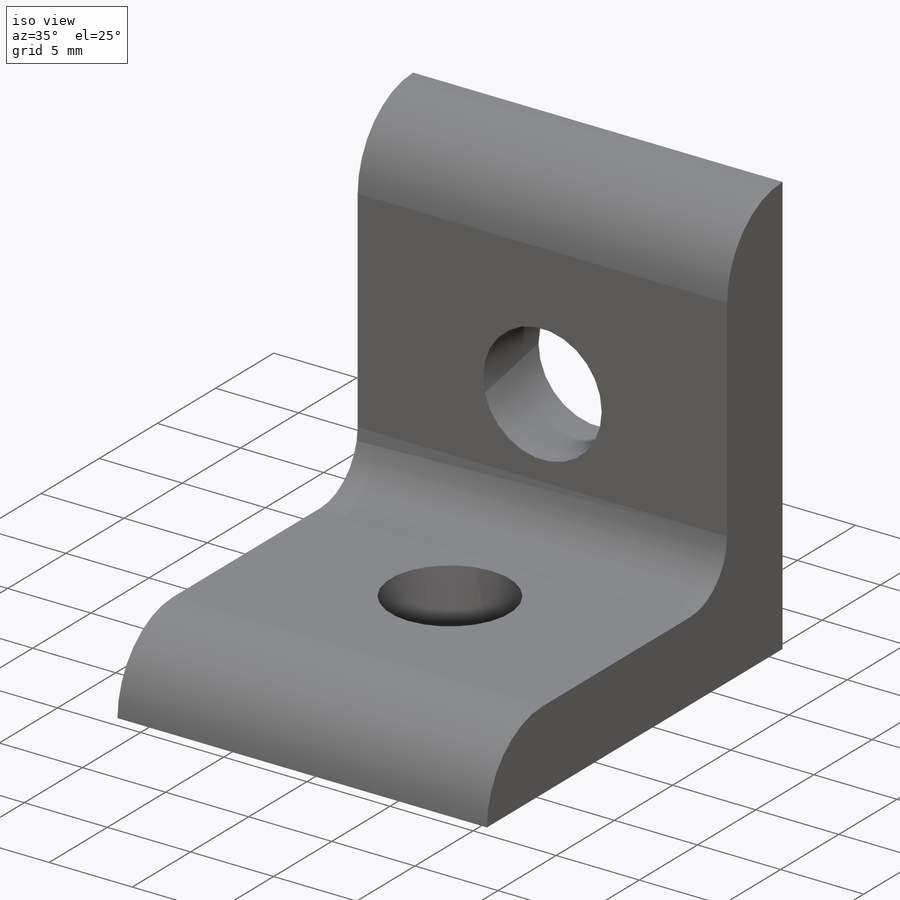
[diagram: iso view]
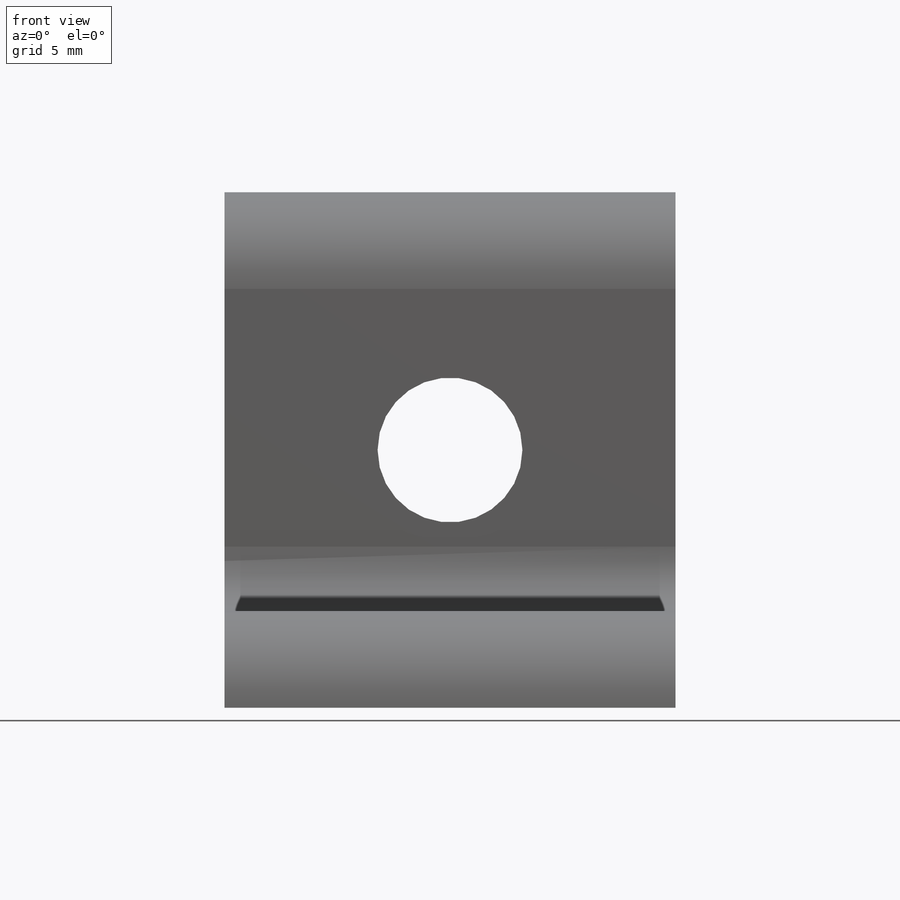
[diagram: front view]
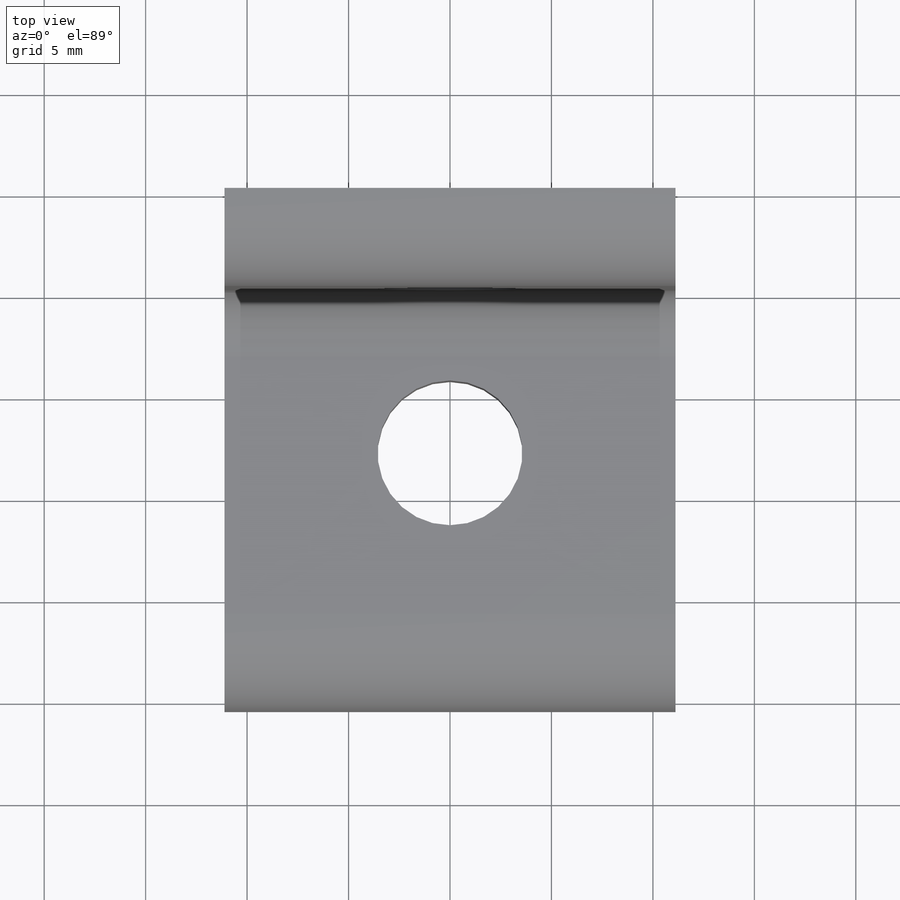
[diagram: top view]
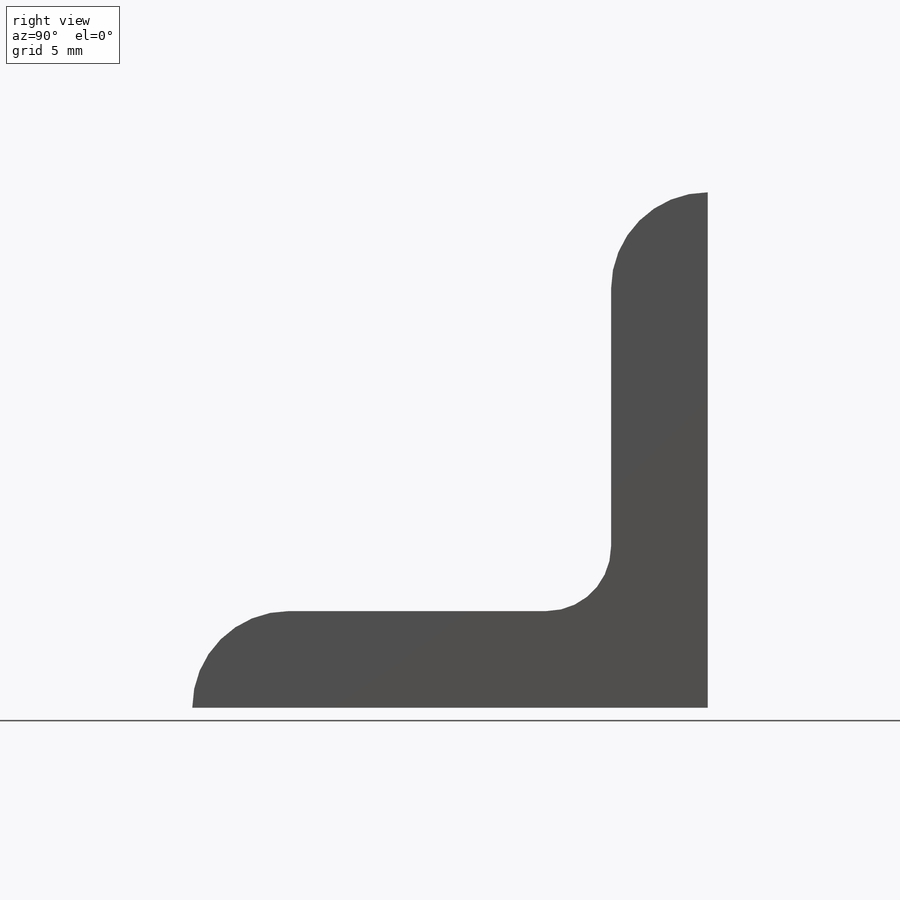
[diagram: right view]
SOLIDWORKS PART (.sldprt)
format: sldprt  version: not decoded by parser v0  size: 154,112 bytes
history: native  units: mm
features: sketch x3, cut_extrude x2, material x1, plane x1, extrude x1 (+14 scaffold rows collapsed)
feature tree (22):
  scaffold x14  (default folders/planes/origin — collapsed)
  material  "6105-T5 Aluminum"
  plane  "Plane1"
  sketch  "Sketch1"  dims[D1=3.175mm]
  extrude  "Boss-Extrude1"  Depth=22.225mm
  sketch  "Sketch6"  dims[D1=7.1374mm]
  cut_extrude  "Cut-Extrude1"  Depth=7.62mm
  sketch  "Sketch7"  dims[D1=7.1374mm]
  cut_extrude  "Cut-Extrude2"  Depth=7.62mm
decode coverage: 6 of 6 modeling features carry decoded parameters
note: suppression state not decoded; provenance and decode notes live in map.json
